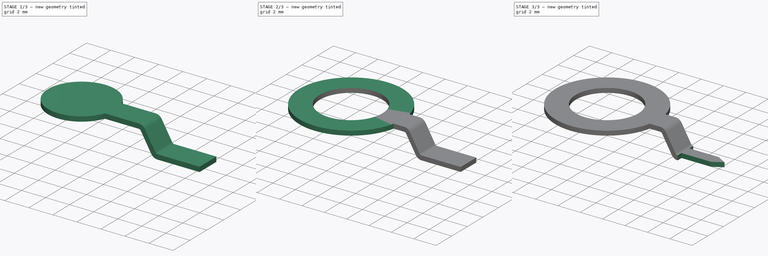
[diagram: build sequence overview — one tinted view per stage of 3, left to right]
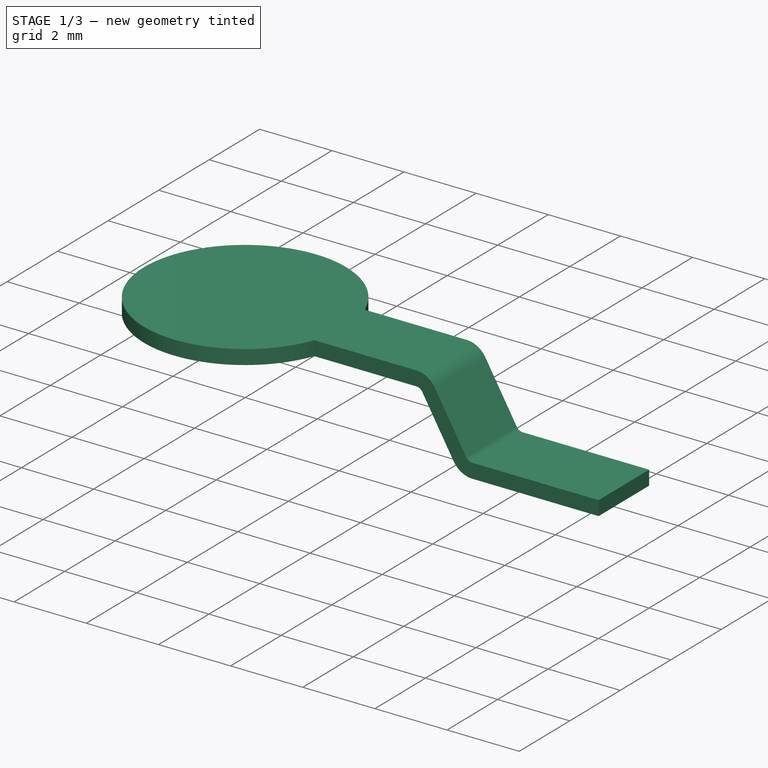
[diagram: stage 1 of 3 — iso view after this stage's code; geometry added in this stage tinted green]
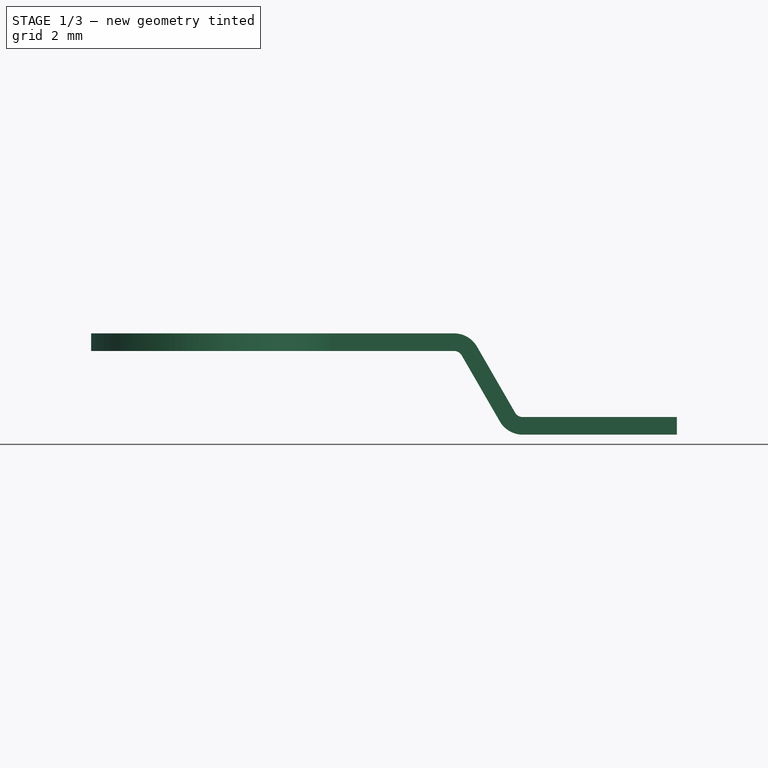
[diagram: stage 1 of 3 — front view after this stage's code; geometry added in this stage tinted green]
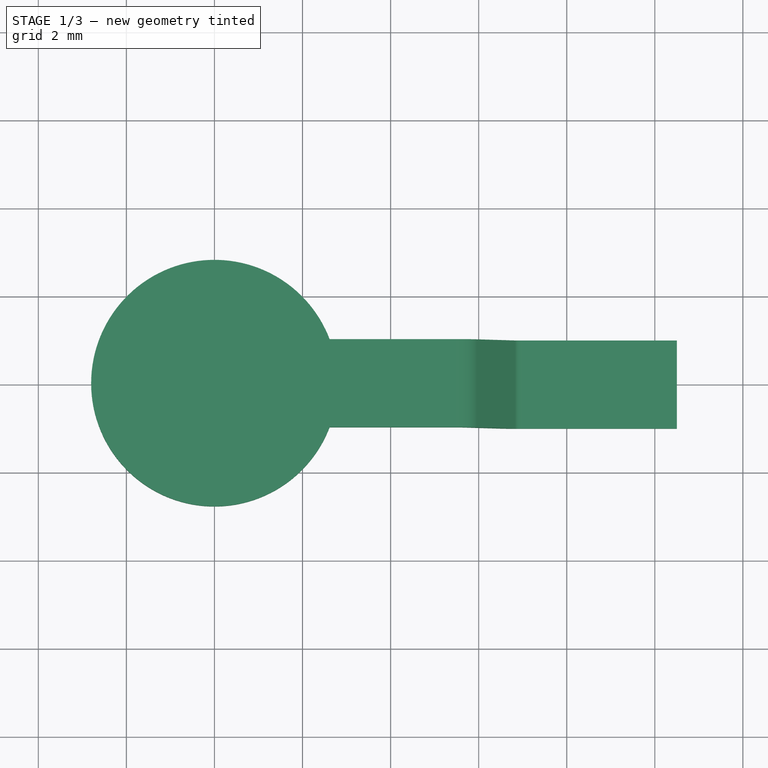
[diagram: stage 1 of 3 — top view after this stage's code; geometry added in this stage tinted green]
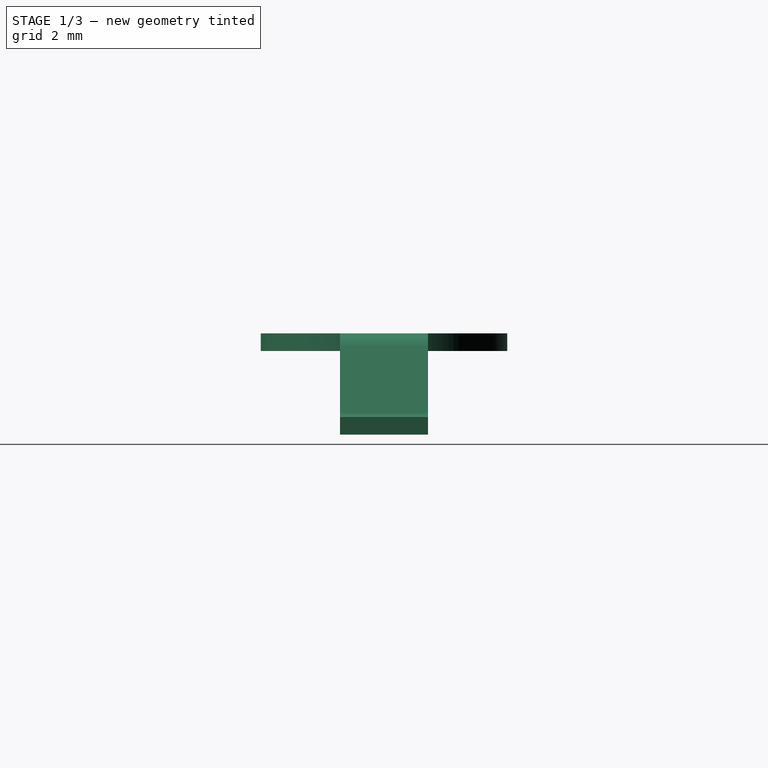
[diagram: stage 1 of 3 — right view after this stage's code; geometry added in this stage tinted green]
FCSTD DOCUMENT  (FreeCAD 0.16R6703 (Git))
Label: Wiper
License: CreativeCommons Attribution-ShareAlike
LicenseURL: http://creativecommons.org/licenses/by-sa/4.0/
objects: Sketcher::SketchObject×3, Part::Cylinder×2, Part::Sweep×1, Part::MultiFuse×1, Part::Cut×1, PartDesign::Pocket×1, Part::MultiCommon×1
note: 11 computed .brp shape members not serialized (recipe doc carries the construction recipe); baked Part::Feature solids carry a one-line shape summary decoded from their .brp

FEATURE [Sketcher::SketchObject] Sketch  label="Sketch_trajectory"
  Placement = pos=(0,0,0) rot=(1,0,0;1.5708rad)
  sketch-geometry (5):
    g0: LineSegment StartX=0 StartY=0.2 StartZ=0 EndX=5.44115 EndY=0.2 EndZ=0
    g1: LineSegment StartX=5.78756 StartY=0 StartZ=0 EndX=6.65359 EndY=-1.5 EndZ=0
    g2: LineSegment StartX=7 StartY=-1.7 StartZ=0 EndX=10.5 EndY=-1.7 EndZ=0
    g3: ArcOfCircle CenterX=7 CenterY=-1.3 CenterZ=0 NormalX=0 NormalY=0 NormalZ=1 Radius=0.4 StartAngle=3.66519 EndAngle=4.71239
    g4: ArcOfCircle CenterX=5.44115 CenterY=-0.2 CenterZ=0 NormalX=0 NormalY=0 NormalZ=1 Radius=0.4 StartAngle=0.523599 EndAngle=1.5708
  constraints (14):
    c: PointOnObject(g0,g-2)
    c: Horizontal(g0)
    c: Horizontal(g2)
    c: Tangent(g2,g3) = -1.5708
    c: Tangent(g1,g3) = -1.5708
    c: Tangent(g0,g4) = 1.5708
    c: Tangent(g1,g4) = 1.5708
    c: DistanceX(g2,g2) = 3.5
    c: Equal(g3,g4)
    c: Radius(g4) = 0.4
    c: DistanceY(g-1,g0) = 0.2
    c: DistanceY(g2,g-1) = 1.7
    c: DistanceX(g-1,g2) = 7
    c: Angle(g0,g1) = 2.0944
FEATURE [Sketcher::SketchObject] Sketch001  label="Sketch_section"
  Placement = pos=(0,0,0) rot=(0.57735,0.57735,0.57735;2.0944rad)
  sketch-geometry (4):
    g0: LineSegment StartX=-1 StartY=0.4 StartZ=0 EndX=1 EndY=0.4 EndZ=0
    g1: LineSegment StartX=1 StartY=0.4 StartZ=0 EndX=1 EndY=0 EndZ=0
    g2: LineSegment StartX=1 StartY=0 StartZ=0 EndX=-1 EndY=0 EndZ=0
    g3: LineSegment StartX=-1 StartY=0 StartZ=0 EndX=-1 EndY=0.4 EndZ=0
  constraints (12):
    c: Coincident(g0,g1)
    c: Coincident(g1,g2)
    c: Coincident(g2,g3)
    c: Coincident(g3,g0)
    c: Horizontal(g0)
    c: Horizontal(g2)
    c: Vertical(g1)
    c: Vertical(g3)
    c: PointOnObject(g1,g-1)
    c: Symmetric(g0,g0,g-2)
    c: DistanceY(g1,g1) = 0.4
    c: DistanceX(g0,g0) = 2
FEATURE [Part::Sweep] Sweep
  Frenet = false
  Sections = -> [Sketch001]
  Solid = true
  Spine = -> Sketch
  Transition = 1
FEATURE [Part::Cylinder] Cylinder001
  Angle = 360
  Height = 0.4
  Radius = 2.8
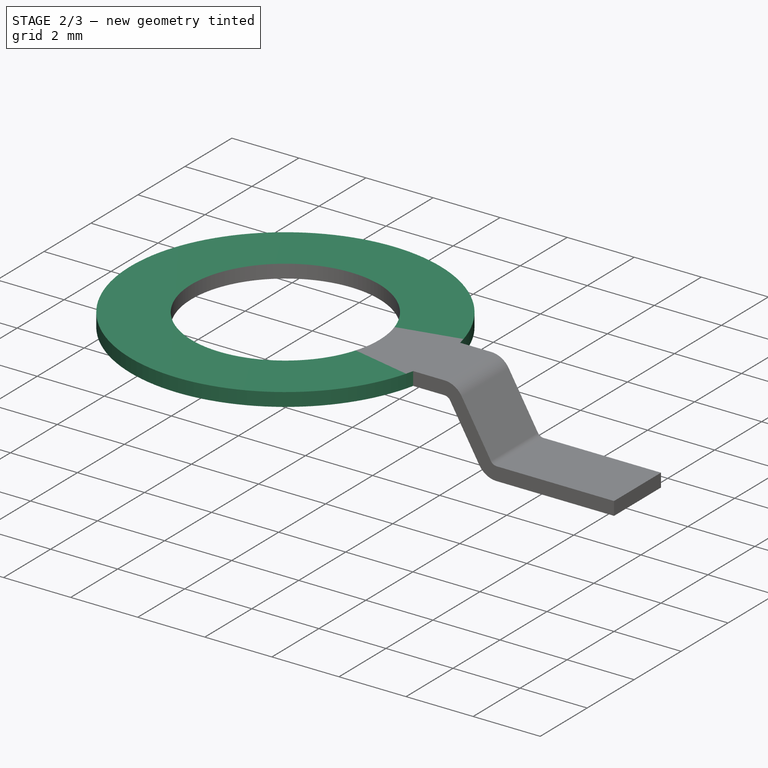
[diagram: stage 2 of 3 — iso view after this stage's code; geometry added in this stage tinted green]
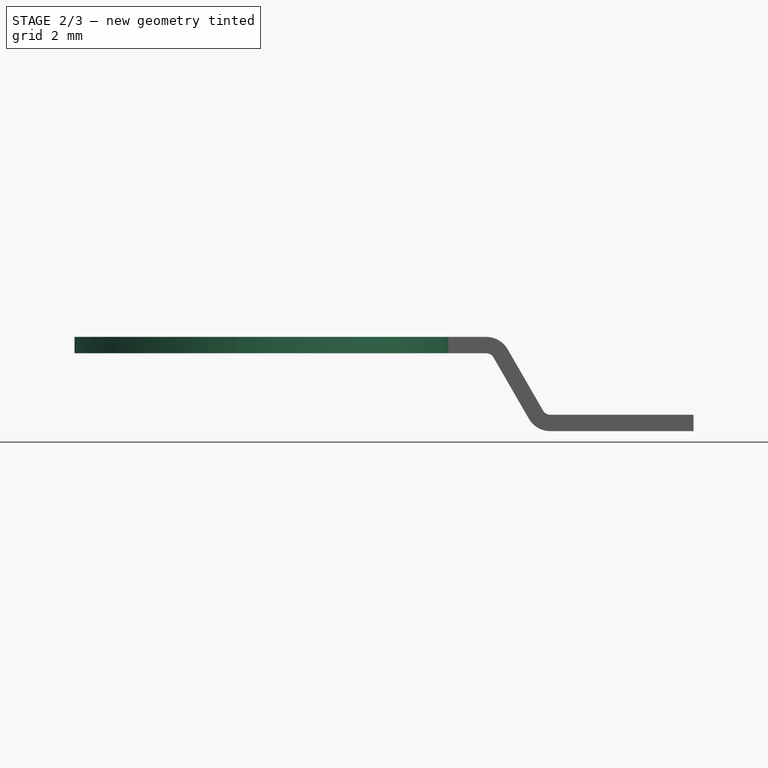
[diagram: stage 2 of 3 — front view after this stage's code; geometry added in this stage tinted green]
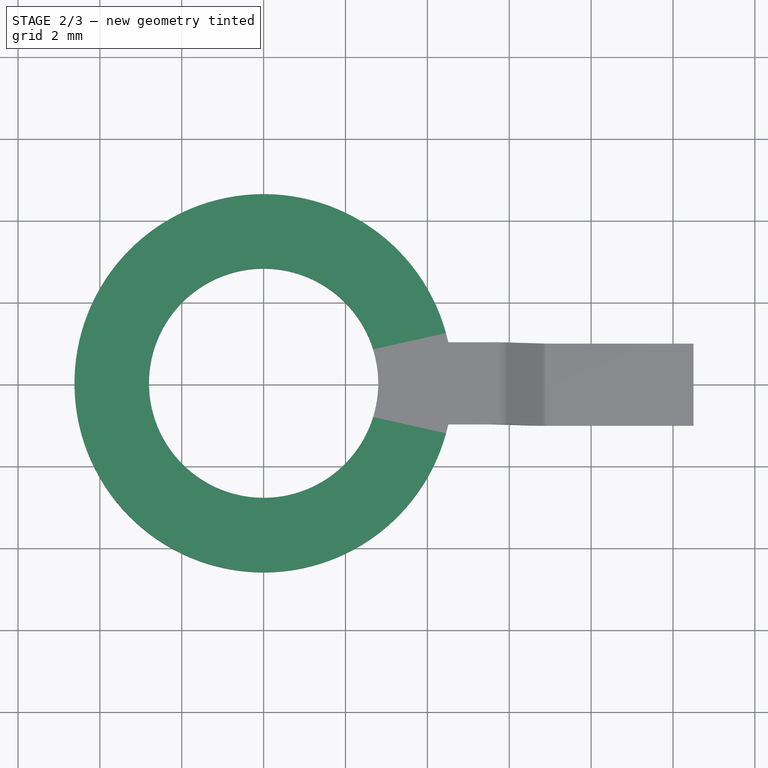
[diagram: stage 2 of 3 — top view after this stage's code; geometry added in this stage tinted green]
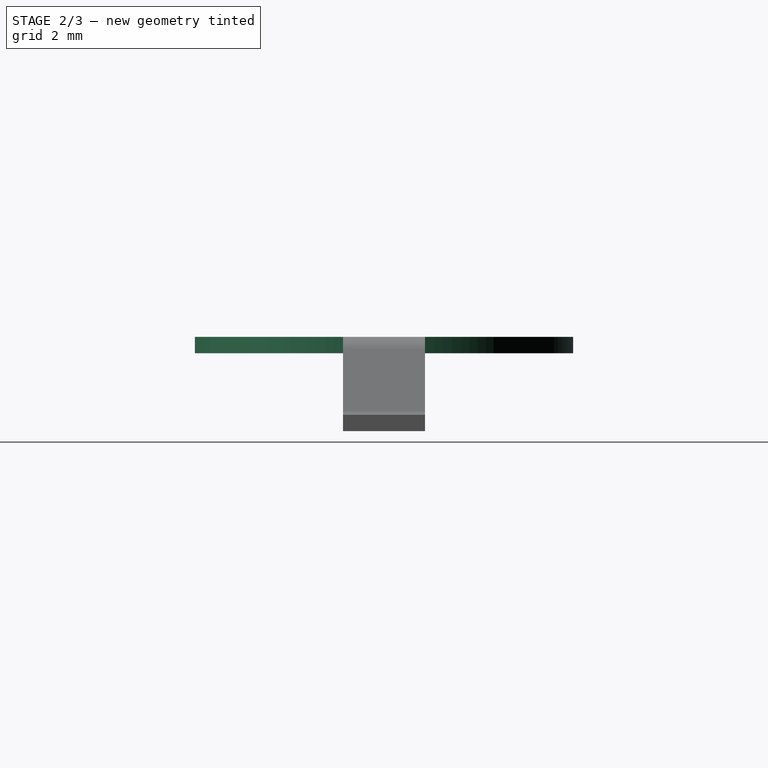
[diagram: stage 2 of 3 — right view after this stage's code; geometry added in this stage tinted green]
FEATURE [Part::Cylinder] Cylinder
  Angle = 360
  Height = 0.4
  Radius = 4.62
FEATURE [Part::MultiFuse] Fusion
  Shapes = -> [Sweep,Cylinder]
FEATURE [Part::Cut] Cut
  Base = -> Fusion
  Tool = -> Cylinder001
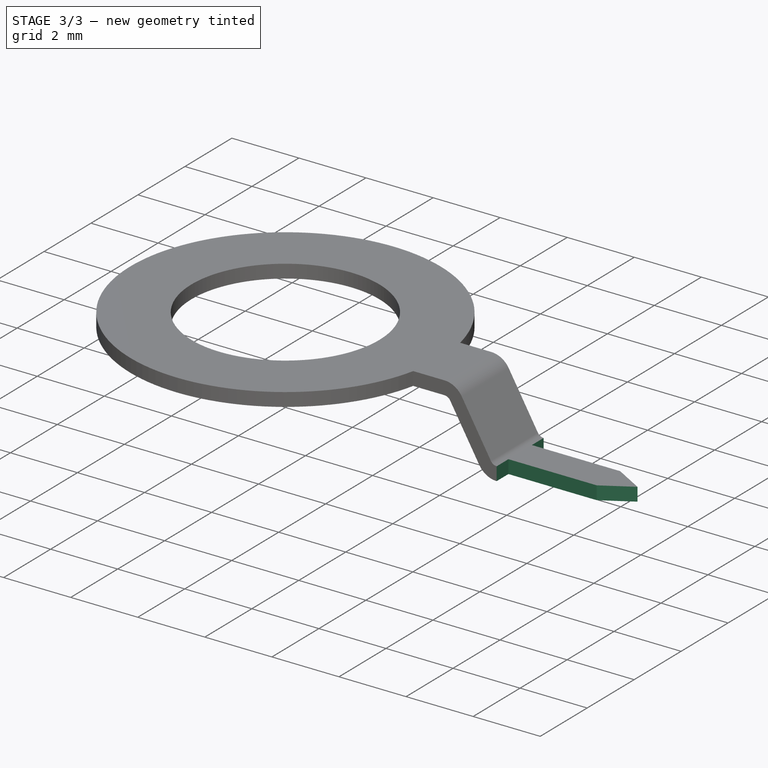
[diagram: stage 3 of 3 — iso view after this stage's code; geometry added in this stage tinted green]
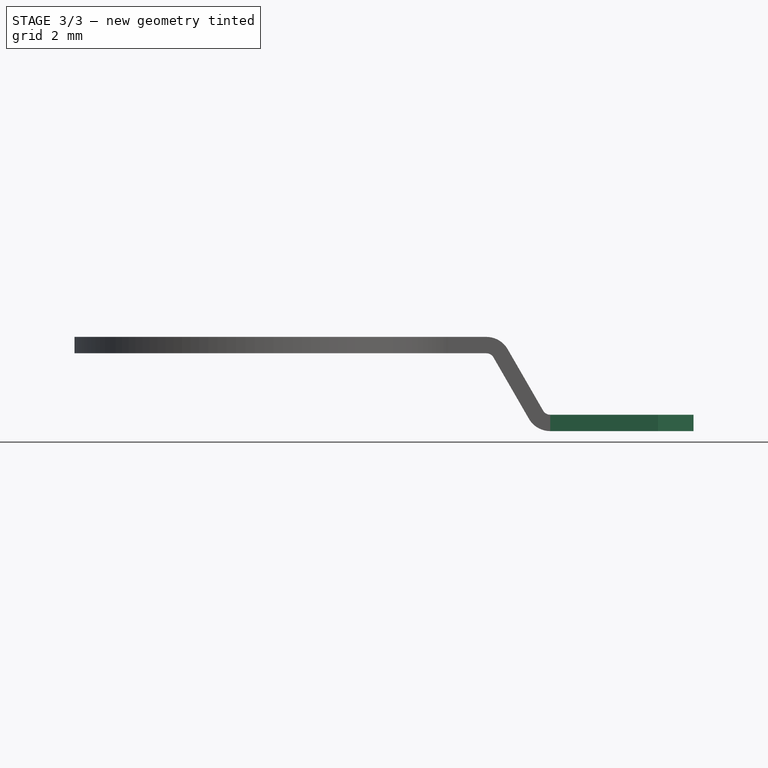
[diagram: stage 3 of 3 — front view after this stage's code; geometry added in this stage tinted green]
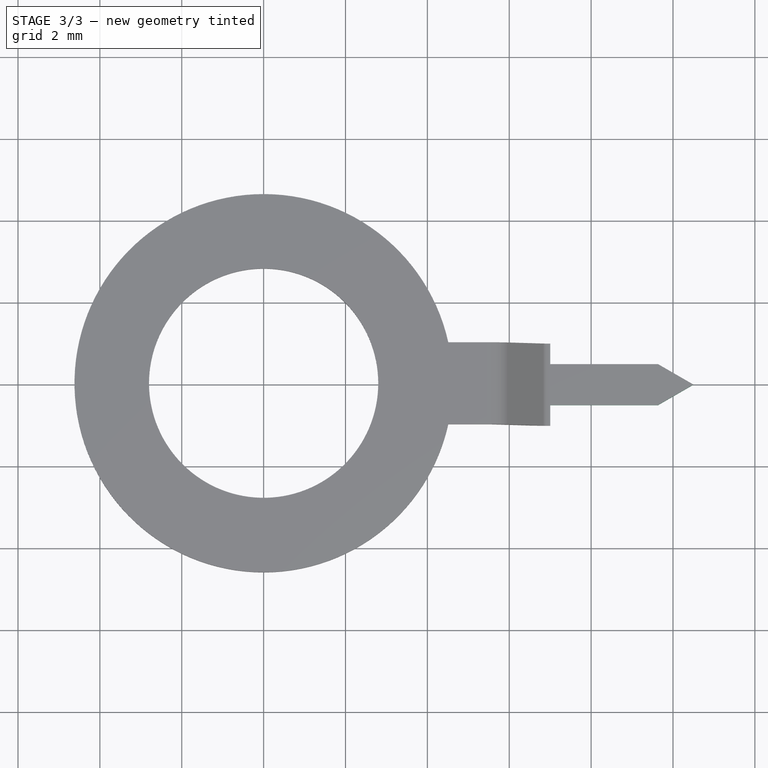
[diagram: stage 3 of 3 — top view after this stage's code; geometry added in this stage tinted green]
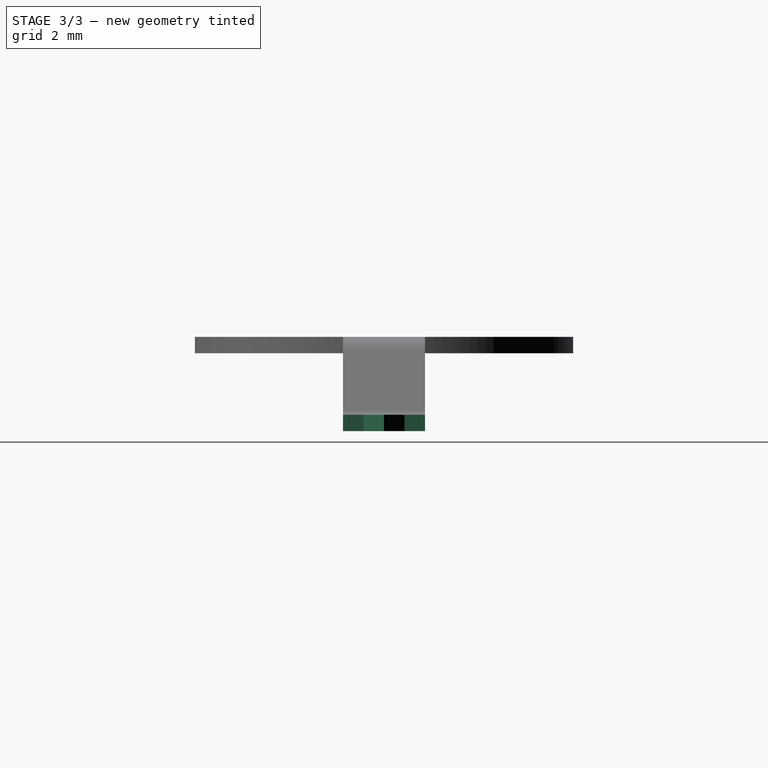
[diagram: stage 3 of 3 — right view after this stage's code; geometry added in this stage tinted green]
FEATURE [Sketcher::SketchObject] Sketch002
  ExternalGeometry = -> [Cut]
  Placement = pos=(0,0,-1.5) rot=(0,0,1;0rad)
  Support = -> Cut [Face9]
  sketch-geometry (9):
    g0: LineSegment StartX=10.499 StartY=0 StartZ=0 EndX=9.63297 EndY=0.5 EndZ=0
    g1: LineSegment StartX=9.63297 StartY=-0.5 StartZ=0 EndX=10.499 EndY=0 EndZ=0
    g2: LineSegment StartX=9.63297 StartY=0.5 StartZ=0 EndX=7 EndY=0.5 EndZ=0
    g3: LineSegment StartX=7 StartY=0.5 StartZ=0 EndX=7 EndY=1 EndZ=0
    g4: LineSegment StartX=7 StartY=1 StartZ=0 EndX=10.5 EndY=1 EndZ=0
    g5: LineSegment StartX=10.5 StartY=-1 StartZ=0 EndX=7 EndY=-1 EndZ=0
    g6: LineSegment StartX=7 StartY=-1 StartZ=0 EndX=7 EndY=-0.5 EndZ=0
    g7: LineSegment StartX=7 StartY=-0.5 StartZ=0 EndX=9.63297 EndY=-0.5 EndZ=0
    g8: LineSegment StartX=10.5 StartY=1 StartZ=0 EndX=10.5 EndY=-1 EndZ=0
  constraints (25):
    c: Coincident(g1,g0)
    c: Equal(g1,g0)
    c: Angle(g0,g1) = 1.0472
    c: PointOnObject(g0,g-1)
    c: DistanceX(g-1,g0) = 10.499
    c: Coincident(g0,g2)
    c: Coincident(g2,g3)
    c: Coincident(g3,g-3)
    c: Coincident(g3,g4)
    c: Coincident(g5,g-3)
    c: Coincident(g5,g6)
    c: Vertical(g6)
    c: Coincident(g6,g7)
    c: Coincident(g7,g1)
    c: PointOnObject(g2,g-3)
    c: Horizontal(g4)
    c: Horizontal(g2)
    c: Horizontal(g7)
    c: Horizontal(g5)
    c: DistanceY(g1,g0) = 1
    c: Symmetric(g2,g6,g-1)
    c: Coincident(g8,g4)
    c: Coincident(g8,g5)
    c: Vertical(g8)
    c: DistanceX(g-1,g4) = 10.5
FEATURE [PartDesign::Pocket] Pocket
  Length = 5
  Sketch = -> Sketch002
  Type = 0
FEATURE [Part::MultiCommon] Common
  Shapes = -> [Cut,Pocket]
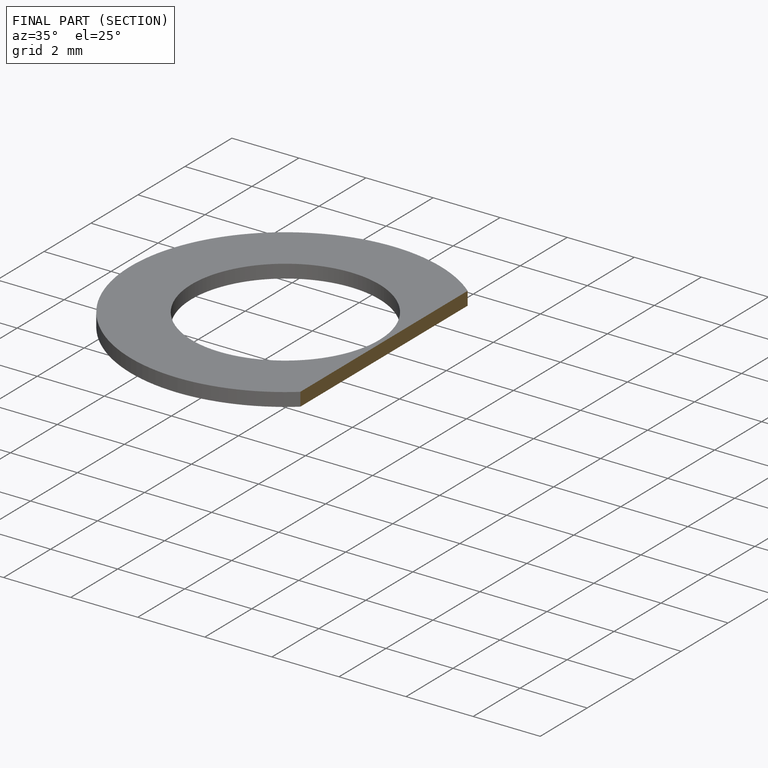
[diagram: finished part — half-section view (interior)]
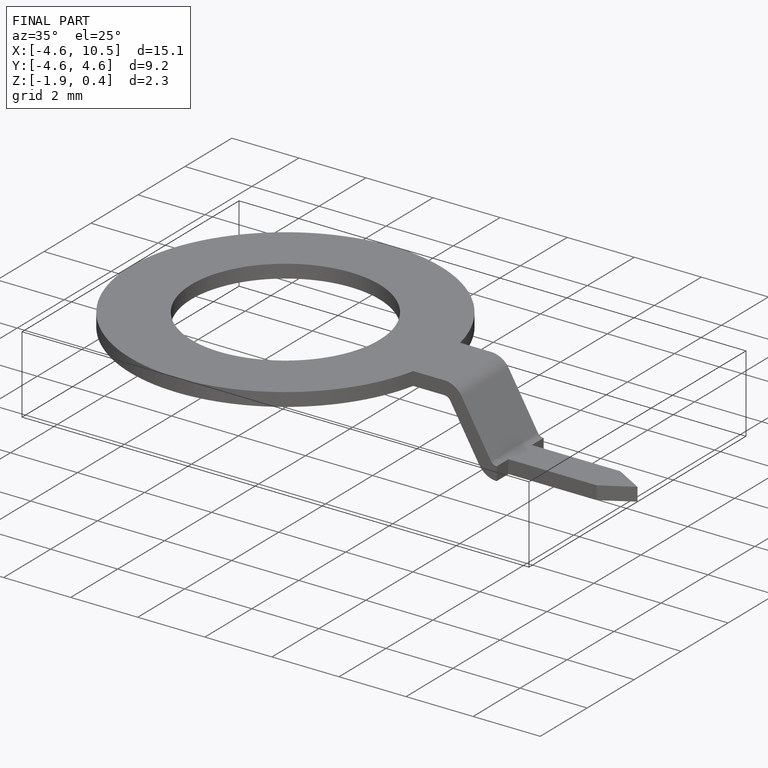
[diagram: finished part — iso view with bounding-box wireframe]
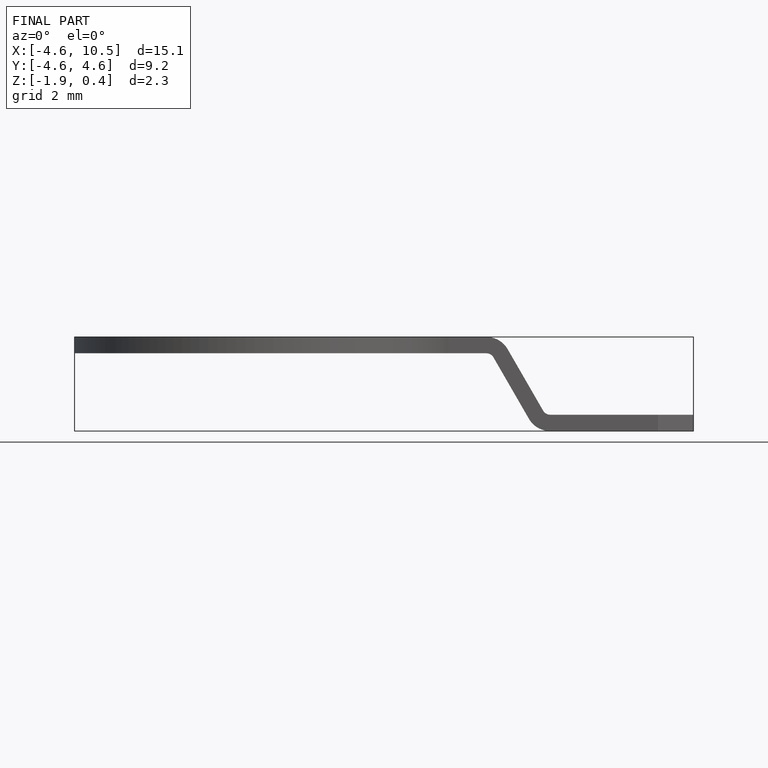
[diagram: finished part — front view with bounding-box wireframe]
